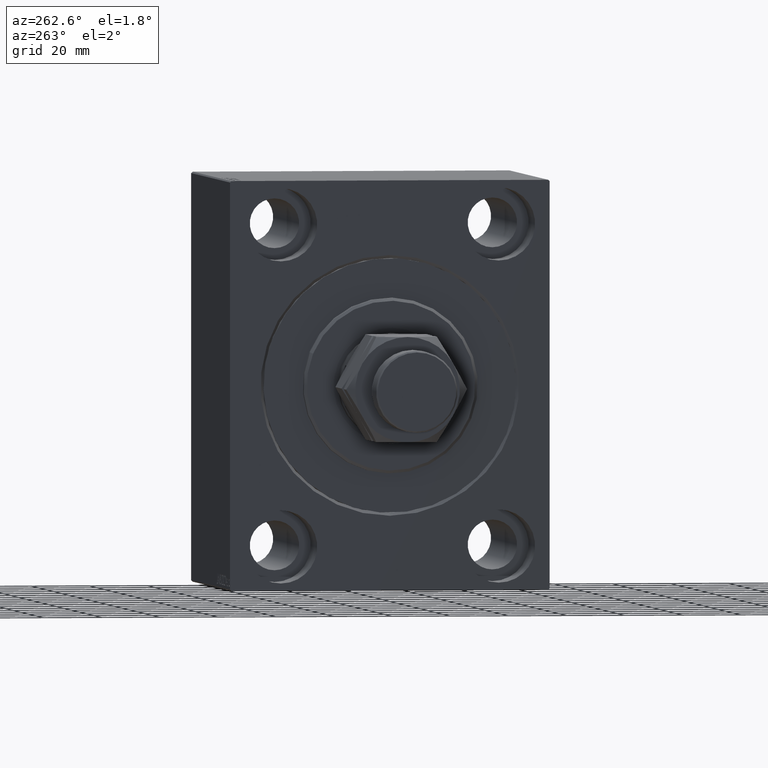
[diagram: clean part render]
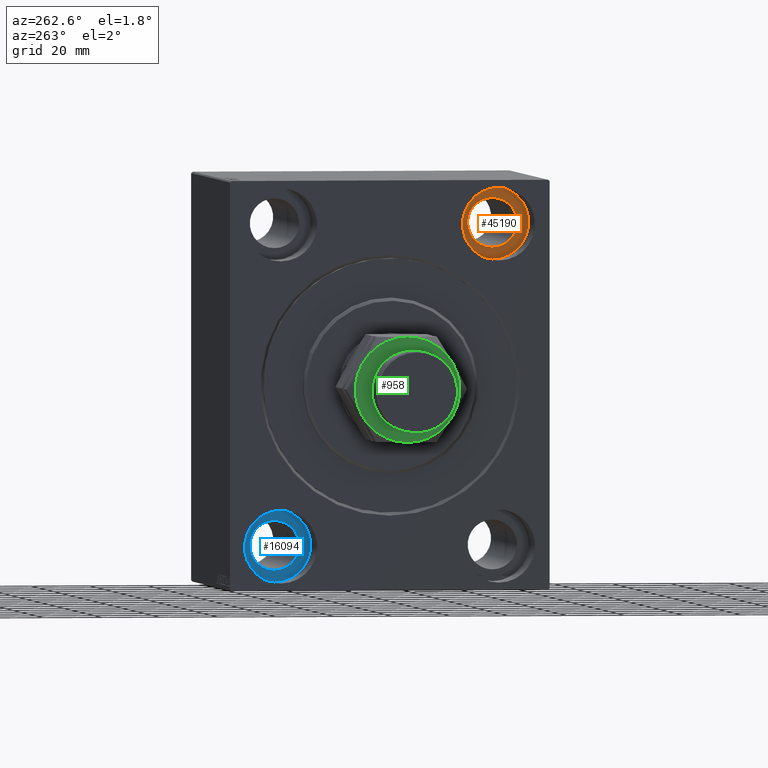
[diagram: same view with three faces highlighted in distinct colors, each labeled with its STEP entity id]
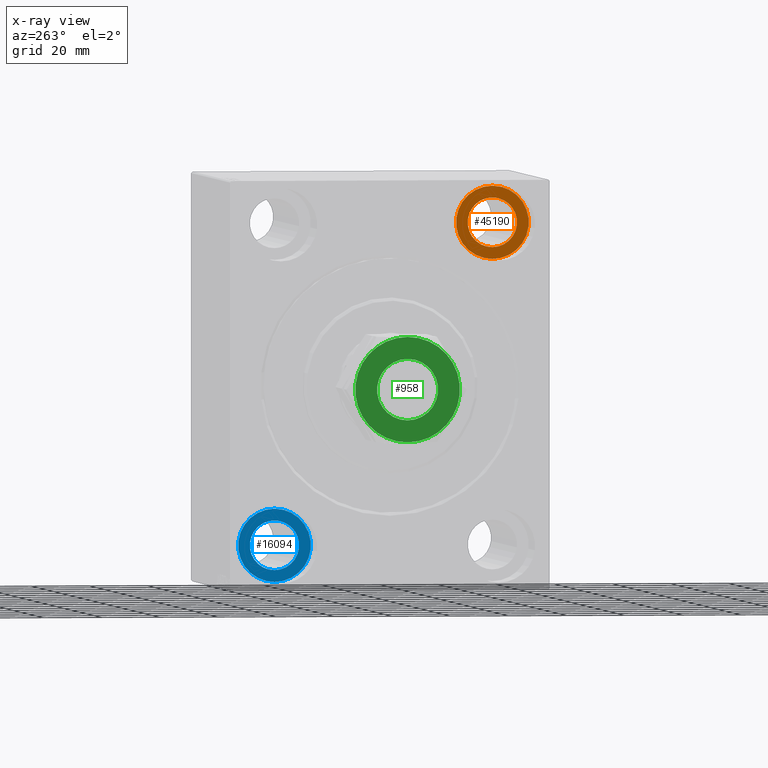
[diagram: x-ray of the same camera — body ghosted, the three highlighted faces saturated]
A machine part, auxiliary view with three faces highlighted in distinct colors.
The next image is the same camera in x-ray (body ghosted, the three faces saturated) — at least one of them is partly hidden behind the body in this view.
Their STEP definitions:

[orange] entity #45190 — the highlighted planar face has unit normal (-1, 0, 0).
#370 = CIRCLE ( 'NONE', #15828, 8.499999999999992895 ) ;
#1757 = VERTEX_POINT ( 'NONE', #25910 ) ;
#3633 = DIRECTION ( 'NONE',  ( 0.000000000000000000, 0.000000000000000000, 1.000000000000000000 ) ) ;
#4040 = CARTESIAN_POINT ( 'NONE',  ( 17.00000000000000000, -37.50000000000000711, 67.50000000000000000 ) ) ;
#4599 = DIRECTION ( 'NONE',  ( 0.000000000000000000, 0.000000000000000000, 1.000000000000000000 ) ) ;
#4879 = CIRCLE ( 'NONE', #10763, 12.49999999999999645 ) ;
#6324 = AXIS2_PLACEMENT_3D ( 'NONE', #23572, #38084, #34858 ) ;
#7093 = DIRECTION ( 'NONE',  ( -1.000000000000000000, 0.000000000000000000, 0.000000000000000000 ) ) ;
#7667 = EDGE_CURVE ( 'NONE', #36260, #11457, #4879, .T. ) ;
#7823 = FACE_OUTER_BOUND ( 'NONE', #15861, .T. ) ;
#8947 = CIRCLE ( 'NONE', #33205, 8.499999999999992895 ) ;
#10763 = AXIS2_PLACEMENT_3D ( 'NONE', #28620, #21720, #35321 ) ;
#11457 = VERTEX_POINT ( 'NONE', #4040 ) ;
#12566 = AXIS2_PLACEMENT_3D ( 'NONE', #18431, #28992, #4599 ) ;
#12834 = ORIENTED_EDGE ( 'NONE', *, *, #44350, .F. ) ;
#13785 = EDGE_CURVE ( 'NONE', #11457, #36260, #39424, .T. ) ;
#15797 = ORIENTED_EDGE ( 'NONE', *, *, #13785, .T. ) ;
#15828 = AXIS2_PLACEMENT_3D ( 'NONE', #39151, #29009, #32928 ) ;
#15861 = EDGE_LOOP ( 'NONE', ( #15797, #33428 ) ) ;
#18431 = CARTESIAN_POINT ( 'NONE',  ( 17.00000000000000000, 0.000000000000000000, 0.000000000000000000 ) ) ;
#21040 = VERTEX_POINT ( 'NONE', #32677 ) ;
#21720 = DIRECTION ( 'NONE',  ( -1.000000000000000000, 0.000000000000000000, 0.000000000000000000 ) ) ;
#23572 = CARTESIAN_POINT ( 'NONE',  ( 17.00000000000000000, -37.50000000000000711, 55.00000000000000711 ) ) ;
#24128 = ORIENTED_EDGE ( 'NONE', *, *, #32915, .F. ) ;
#25910 = CARTESIAN_POINT ( 'NONE',  ( 17.00000000000000000, -37.50000000000000711, 63.50000000000000000 ) ) ;
#28620 = CARTESIAN_POINT ( 'NONE',  ( 17.00000000000000000, -37.50000000000000711, 55.00000000000000711 ) ) ;
#28992 = DIRECTION ( 'NONE',  ( -1.000000000000000000, 0.000000000000000000, 0.000000000000000000 ) ) ;
#29009 = DIRECTION ( 'NONE',  ( -1.000000000000000000, 0.000000000000000000, 0.000000000000000000 ) ) ;
#32677 = CARTESIAN_POINT ( 'NONE',  ( 17.00000000000000000, -37.50000000000000711, 46.50000000000001421 ) ) ;
#32915 = EDGE_CURVE ( 'NONE', #1757, #21040, #8947, .T. ) ;
#32928 = DIRECTION ( 'NONE',  ( 0.000000000000000000, 0.000000000000000000, 1.000000000000000000 ) ) ;
#33205 = AXIS2_PLACEMENT_3D ( 'NONE', #38627, #7093, #3633 ) ;
#33428 = ORIENTED_EDGE ( 'NONE', *, *, #7667, .T. ) ;
#34858 = DIRECTION ( 'NONE',  ( 0.000000000000000000, 0.000000000000000000, 1.000000000000000000 ) ) ;
#35321 = DIRECTION ( 'NONE',  ( 0.000000000000000000, 0.000000000000000000, 1.000000000000000000 ) ) ;
#36260 = VERTEX_POINT ( 'NONE', #38669 ) ;
#37313 = EDGE_LOOP ( 'NONE', ( #24128, #12834 ) ) ;
#38084 = DIRECTION ( 'NONE',  ( -1.000000000000000000, 0.000000000000000000, 0.000000000000000000 ) ) ;
#38627 = CARTESIAN_POINT ( 'NONE',  ( 17.00000000000000000, -37.50000000000000711, 55.00000000000000711 ) ) ;
#38669 = CARTESIAN_POINT ( 'NONE',  ( 17.00000000000000000, -37.50000000000000711, 42.50000000000000711 ) ) ;
#39151 = CARTESIAN_POINT ( 'NONE',  ( 17.00000000000000000, -37.50000000000000711, 55.00000000000000711 ) ) ;
#39358 = FACE_BOUND ( 'NONE', #37313, .T. ) ;
#39424 = CIRCLE ( 'NONE', #6324, 12.49999999999999645 ) ;
#39587 = PLANE ( 'NONE',  #12566 ) ;
#44350 = EDGE_CURVE ( 'NONE', #21040, #1757, #370, .T. ) ;
#45190 = ADVANCED_FACE ( 'NONE', ( #39358, #7823 ), #39587, .T. ) ;

[blue] entity #16094 — the highlighted planar face has unit normal (-1, 0, 0).
#90 = CARTESIAN_POINT ( 'NONE',  ( 17.00000000000000000, 37.49999999999997868, -54.99999999999999289 ) ) ;
#627 = CARTESIAN_POINT ( 'NONE',  ( 17.00000000000000000, 37.49999999999997868, -63.49999999999998579 ) ) ;
#1379 = EDGE_CURVE ( 'NONE', #39972, #5023, #19449, .T. ) ;
#3091 = DIRECTION ( 'NONE',  ( -1.000000000000000000, 0.000000000000000000, 0.000000000000000000 ) ) ;
#5023 = VERTEX_POINT ( 'NONE', #36393 ) ;
#5135 = AXIS2_PLACEMENT_3D ( 'NONE', #37931, #6394, #20450 ) ;
#6394 = DIRECTION ( 'NONE',  ( -1.000000000000000000, 0.000000000000000000, 0.000000000000000000 ) ) ;
#8415 = VERTEX_POINT ( 'NONE', #11144 ) ;
#9273 = DIRECTION ( 'NONE',  ( 0.000000000000000000, 0.000000000000000000, 1.000000000000000000 ) ) ;
#9331 = FACE_BOUND ( 'NONE', #35084, .T. ) ;
#10252 = FACE_OUTER_BOUND ( 'NONE', #34132, .T. ) ;
#11028 = VERTEX_POINT ( 'NONE', #17476 ) ;
#11143 = DIRECTION ( 'NONE',  ( 0.000000000000000000, 0.000000000000000000, 1.000000000000000000 ) ) ;
#11144 = CARTESIAN_POINT ( 'NONE',  ( 17.00000000000000000, 37.49999999999997868, -42.49999999999999289 ) ) ;
#15111 = CIRCLE ( 'NONE', #29780, 12.49999999999999645 ) ;
#15407 = EDGE_CURVE ( 'NONE', #5023, #39972, #26198, .T. ) ;
#16094 = ADVANCED_FACE ( 'NONE', ( #9331, #10252 ), #44996, .T. ) ;
#17476 = CARTESIAN_POINT ( 'NONE',  ( 17.00000000000000000, 37.49999999999997868, -67.49999999999998579 ) ) ;
#18266 = DIRECTION ( 'NONE',  ( -1.000000000000000000, 0.000000000000000000, 0.000000000000000000 ) ) ;
#19449 = CIRCLE ( 'NONE', #25301, 8.499999999999992895 ) ;
#20384 = DIRECTION ( 'NONE',  ( -1.000000000000000000, 0.000000000000000000, 0.000000000000000000 ) ) ;
#20450 = DIRECTION ( 'NONE',  ( 0.000000000000000000, 0.000000000000000000, 1.000000000000000000 ) ) ;
#21834 = AXIS2_PLACEMENT_3D ( 'NONE', #37183, #20384, #26813 ) ;
#22089 = ORIENTED_EDGE ( 'NONE', *, *, #43623, .T. ) ;
#22609 = CARTESIAN_POINT ( 'NONE',  ( 17.00000000000000000, 37.49999999999997868, -54.99999999999999289 ) ) ;
#23304 = CARTESIAN_POINT ( 'NONE',  ( 17.00000000000000000, 37.49999999999997868, -54.99999999999999289 ) ) ;
#25301 = AXIS2_PLACEMENT_3D ( 'NONE', #23304, #30904, #9273 ) ;
#26198 = CIRCLE ( 'NONE', #32089, 8.499999999999992895 ) ;
#26813 = DIRECTION ( 'NONE',  ( 0.000000000000000000, 0.000000000000000000, 1.000000000000000000 ) ) ;
#27347 = ORIENTED_EDGE ( 'NONE', *, *, #1379, .F. ) ;
#27812 = EDGE_CURVE ( 'NONE', #11028, #8415, #34520, .T. ) ;
#28797 = ORIENTED_EDGE ( 'NONE', *, *, #15407, .F. ) ;
#29284 = DIRECTION ( 'NONE',  ( 0.000000000000000000, 0.000000000000000000, 1.000000000000000000 ) ) ;
#29780 = AXIS2_PLACEMENT_3D ( 'NONE', #22609, #18266, #29284 ) ;
#30904 = DIRECTION ( 'NONE',  ( -1.000000000000000000, 0.000000000000000000, 0.000000000000000000 ) ) ;
#32089 = AXIS2_PLACEMENT_3D ( 'NONE', #90, #3091, #11143 ) ;
#34132 = EDGE_LOOP ( 'NONE', ( #22089, #38166 ) ) ;
#34520 = CIRCLE ( 'NONE', #5135, 12.49999999999999645 ) ;
#35084 = EDGE_LOOP ( 'NONE', ( #28797, #27347 ) ) ;
#36393 = CARTESIAN_POINT ( 'NONE',  ( 17.00000000000000000, 37.49999999999997868, -46.50000000000000000 ) ) ;
#37183 = CARTESIAN_POINT ( 'NONE',  ( 17.00000000000000000, 37.49999999999997868, -54.99999999999999289 ) ) ;
#37931 = CARTESIAN_POINT ( 'NONE',  ( 17.00000000000000000, 37.49999999999997868, -54.99999999999999289 ) ) ;
#38166 = ORIENTED_EDGE ( 'NONE', *, *, #27812, .T. ) ;
#39972 = VERTEX_POINT ( 'NONE', #627 ) ;
#43623 = EDGE_CURVE ( 'NONE', #8415, #11028, #15111, .T. ) ;
#44996 = PLANE ( 'NONE',  #21834 ) ;

[green] entity #958 — the highlighted planar face has unit normal (-1, 0, 0).
#395 = DIRECTION ( 'NONE',  ( 0.000000000000000000, 0.000000000000000000, 1.000000000000000000 ) ) ;
#501 = ORIENTED_EDGE ( 'NONE', *, *, #31726, .T. ) ;
#958 = ADVANCED_FACE ( 'NONE', ( #17687, #3175 ), #24116, .T. ) ;
#1190 = ORIENTED_EDGE ( 'NONE', *, *, #12553, .T. ) ;
#1456 = AXIS2_PLACEMENT_3D ( 'NONE', #19771, #33802, #2268 ) ;
#1598 = ORIENTED_EDGE ( 'NONE', *, *, #30149, .T. ) ;
#1686 = EDGE_LOOP ( 'NONE', ( #26939, #13586 ) ) ;
#2268 = DIRECTION ( 'NONE',  ( 1.000000000000000000, 0.000000000000000000, 0.000000000000000000 ) ) ;
#2651 = DIRECTION ( 'NONE',  ( 1.000000000000000000, 0.000000000000000000, 0.000000000000000000 ) ) ;
#2654 = CARTESIAN_POINT ( 'NONE',  ( 8.999999999999998224, 15.58845726811989074, 34.00000000000000000 ) ) ;
#2875 = CARTESIAN_POINT ( 'NONE',  ( 0.000000000000000000, 0.000000000000000000, 34.00000000000000000 ) ) ;
#3175 = FACE_OUTER_BOUND ( 'NONE', #26478, .T. ) ;
#5037 = CARTESIAN_POINT ( 'NONE',  ( 0.000000000000000000, 0.000000000000000000, 34.00000000000000000 ) ) ;
#5405 = VERTEX_POINT ( 'NONE', #2654 ) ;
#5813 = CARTESIAN_POINT ( 'NONE',  ( -9.000000000000000000, 15.58845726811988897, 34.00000000000000000 ) ) ;
#6650 = AXIS2_PLACEMENT_3D ( 'NONE', #14073, #24422, #17763 ) ;
#7409 = AXIS2_PLACEMENT_3D ( 'NONE', #10112, #9886, #10340 ) ;
#8629 = AXIS2_PLACEMENT_3D ( 'NONE', #2875, #44314, #2651 ) ;
#8954 = VERTEX_POINT ( 'NONE', #25050 ) ;
#9886 = DIRECTION ( 'NONE',  ( 0.000000000000000000, 0.000000000000000000, 1.000000000000000000 ) ) ;
#10112 = CARTESIAN_POINT ( 'NONE',  ( 0.000000000000000000, 0.000000000000000000, 34.00000000000000000 ) ) ;
#10165 = EDGE_CURVE ( 'NONE', #19019, #20390, #40982, .T. ) ;
#10340 = DIRECTION ( 'NONE',  ( 1.000000000000000000, 0.000000000000000000, 0.000000000000000000 ) ) ;
#11563 = CIRCLE ( 'NONE', #8629, 17.99999999999999645 ) ;
#11811 = CIRCLE ( 'NONE', #6650, 17.99999999999999645 ) ;
#12479 = CIRCLE ( 'NONE', #1456, 17.99999999999999645 ) ;
#12553 = EDGE_CURVE ( 'NONE', #8954, #18761, #32016, .T. ) ;
#13342 = EDGE_CURVE ( 'NONE', #20390, #19019, #41615, .T. ) ;
#13549 = CARTESIAN_POINT ( 'NONE',  ( 0.000000000000000000, 0.000000000000000000, 34.00000000000000000 ) ) ;
#13586 = ORIENTED_EDGE ( 'NONE', *, *, #13342, .T. ) ;
#14073 = CARTESIAN_POINT ( 'NONE',  ( 0.000000000000000000, 0.000000000000000000, 34.00000000000000000 ) ) ;
#14862 = DIRECTION ( 'NONE',  ( 0.000000000000000000, 0.000000000000000000, 1.000000000000000000 ) ) ;
#15087 = DIRECTION ( 'NONE',  ( 1.000000000000000000, 0.000000000000000000, 0.000000000000000000 ) ) ;
#15142 = AXIS2_PLACEMENT_3D ( 'NONE', #21991, #14862, #15087 ) ;
#15576 = CARTESIAN_POINT ( 'NONE',  ( -10.49999999999999822, 1.285879139104720633E-15, 34.00000000000000000 ) ) ;
#16140 = EDGE_CURVE ( 'NONE', #39183, #39160, #11563, .T. ) ;
#17382 = AXIS2_PLACEMENT_3D ( 'NONE', #38581, #38130, #31440 ) ;
#17687 = FACE_BOUND ( 'NONE', #1686, .T. ) ;
#17763 = DIRECTION ( 'NONE',  ( 1.000000000000000000, 0.000000000000000000, 0.000000000000000000 ) ) ;
#18761 = VERTEX_POINT ( 'NONE', #20771 ) ;
#19019 = VERTEX_POINT ( 'NONE', #42102 ) ;
#19771 = CARTESIAN_POINT ( 'NONE',  ( 0.000000000000000000, 0.000000000000000000, 34.00000000000000000 ) ) ;
#19793 = CARTESIAN_POINT ( 'NONE',  ( 0.000000000000000000, 0.000000000000000000, 34.00000000000000000 ) ) ;
#20005 = DIRECTION ( 'NONE',  ( 1.000000000000000000, 0.000000000000000000, 0.000000000000000000 ) ) ;
#20390 = VERTEX_POINT ( 'NONE', #15576 ) ;
#20627 = CIRCLE ( 'NONE', #7409, 17.99999999999999645 ) ;
#20771 = CARTESIAN_POINT ( 'NONE',  ( -9.000000000000000000, -15.58845726811989074, 34.00000000000000000 ) ) ;
#21991 = CARTESIAN_POINT ( 'NONE',  ( 0.000000000000000000, 0.000000000000000000, 34.00000000000000000 ) ) ;
#24116 = PLANE ( 'NONE',  #40069 ) ;
#24422 = DIRECTION ( 'NONE',  ( 0.000000000000000000, 0.000000000000000000, 1.000000000000000000 ) ) ;
#25050 = CARTESIAN_POINT ( 'NONE',  ( -17.99999999999999645, 0.000000000000000000, 34.00000000000000000 ) ) ;
#26213 = DIRECTION ( 'NONE',  ( 0.000000000000000000, 0.000000000000000000, 1.000000000000000000 ) ) ;
#26478 = EDGE_LOOP ( 'NONE', ( #40938, #45164, #501, #27574, #1190, #1598 ) ) ;
#26552 = CIRCLE ( 'NONE', #28003, 17.99999999999999645 ) ;
#26939 = ORIENTED_EDGE ( 'NONE', *, *, #10165, .T. ) ;
#27574 = ORIENTED_EDGE ( 'NONE', *, *, #29526, .T. ) ;
#27738 = AXIS2_PLACEMENT_3D ( 'NONE', #19793, #41174, #33821 ) ;
#27819 = EDGE_CURVE ( 'NONE', #39160, #5405, #12479, .T. ) ;
#28003 = AXIS2_PLACEMENT_3D ( 'NONE', #5037, #26213, #20005 ) ;
#29526 = EDGE_CURVE ( 'NONE', #34947, #8954, #20627, .T. ) ;
#30149 = EDGE_CURVE ( 'NONE', #18761, #39183, #11811, .T. ) ;
#31406 = CARTESIAN_POINT ( 'NONE',  ( 17.99999999999999645, 0.000000000000000000, 34.00000000000000000 ) ) ;
#31440 = DIRECTION ( 'NONE',  ( 1.000000000000000000, 0.000000000000000000, 0.000000000000000000 ) ) ;
#31726 = EDGE_CURVE ( 'NONE', #5405, #34947, #26552, .T. ) ;
#31938 = DIRECTION ( 'NONE',  ( 1.000000000000000000, 0.000000000000000000, -0.000000000000000000 ) ) ;
#32016 = CIRCLE ( 'NONE', #15142, 17.99999999999999645 ) ;
#33802 = DIRECTION ( 'NONE',  ( 0.000000000000000000, 0.000000000000000000, 1.000000000000000000 ) ) ;
#33821 = DIRECTION ( 'NONE',  ( 1.000000000000000000, 0.000000000000000000, 0.000000000000000000 ) ) ;
#34947 = VERTEX_POINT ( 'NONE', #5813 ) ;
#35777 = CARTESIAN_POINT ( 'NONE',  ( 9.000000000000001776, -15.58845726811988897, 34.00000000000000000 ) ) ;
#38130 = DIRECTION ( 'NONE',  ( -0.000000000000000000, -0.000000000000000000, -1.000000000000000000 ) ) ;
#38581 = CARTESIAN_POINT ( 'NONE',  ( 0.000000000000000000, 0.000000000000000000, 34.00000000000000000 ) ) ;
#39160 = VERTEX_POINT ( 'NONE', #31406 ) ;
#39183 = VERTEX_POINT ( 'NONE', #35777 ) ;
#40069 = AXIS2_PLACEMENT_3D ( 'NONE', #13549, #395, #31938 ) ;
#40938 = ORIENTED_EDGE ( 'NONE', *, *, #16140, .T. ) ;
#40982 = CIRCLE ( 'NONE', #27738, 10.49999999999999822 ) ;
#41174 = DIRECTION ( 'NONE',  ( -0.000000000000000000, -0.000000000000000000, -1.000000000000000000 ) ) ;
#41615 = CIRCLE ( 'NONE', #17382, 10.49999999999999822 ) ;
#42102 = CARTESIAN_POINT ( 'NONE',  ( 10.49999999999999822, 0.000000000000000000, 34.00000000000000000 ) ) ;
#44314 = DIRECTION ( 'NONE',  ( 0.000000000000000000, 0.000000000000000000, 1.000000000000000000 ) ) ;
#45164 = ORIENTED_EDGE ( 'NONE', *, *, #27819, .T. ) ;